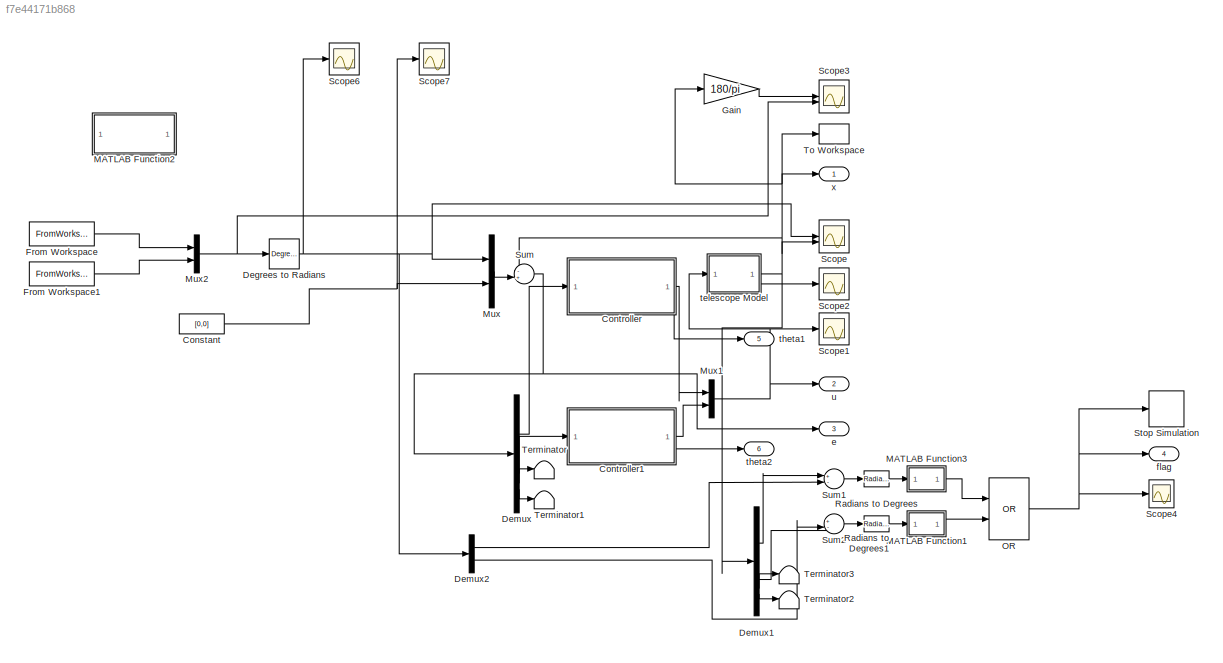
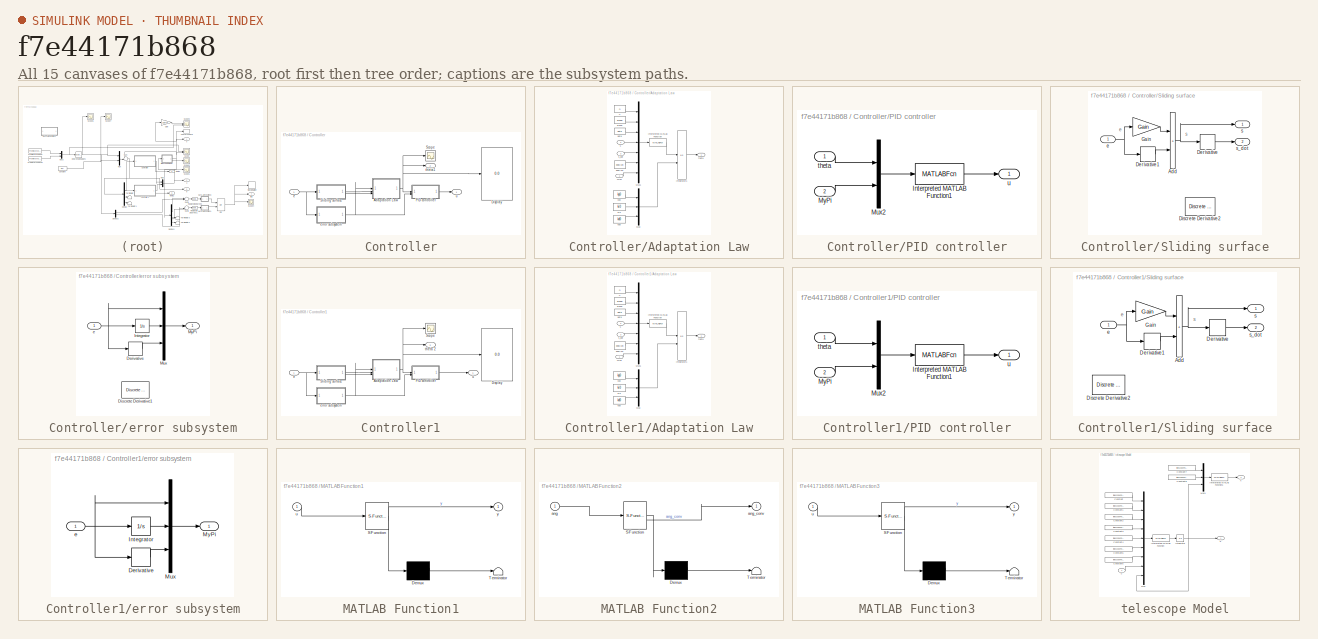
[diagram: thumbnail index - all 15 canvases of the model, root first then tree order]
MODEL slx_f7e44171b868
KIND model
CONFIG AbsTol = auto
CONFIG EnableMultiTasking = off
CONFIG FixedStep = 0.001
CONFIG MaxStep = auto
CONFIG MinStep = auto
CONFIG RelTol = 1e-3
CONFIG SampleTimeConstraint = Unconstrained
CONFIG SolverName = ode4
CONFIG StartTime = 0.0
CONFIG StopTime = 500
BLOCK [Constant] Constant
  Value = [0,0]
BLOCK [SubSystem] Controller
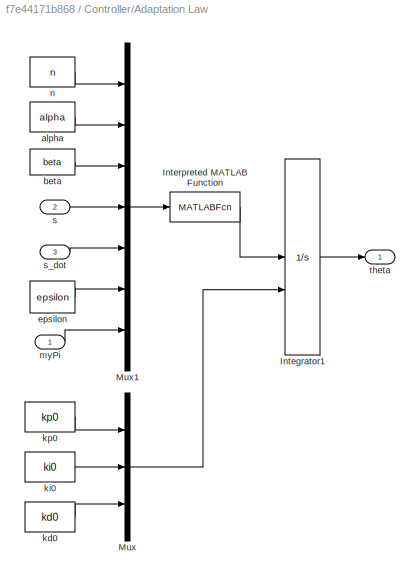
BLOCK [SubSystem] Controller/Adaptation Law
BLOCK [Integrator] Controller/Adaptation Law/Integrator1
  InitialCondition = [1.460477259865257e-04,6.548069875818259e-05,0]
  InitialConditionSource = external
BLOCK [MATLABFcn] Controller/Adaptation Law/Interpreted MATLAB Function
  MATLABFcn = adaptationLaw
BLOCK [Mux] Controller/Adaptation Law/Mux
  DisplayOption = bar
  Inputs = 3
BLOCK [Mux] Controller/Adaptation Law/Mux1
  DisplayOption = bar
  Inputs = 7
BLOCK [Constant] Controller/Adaptation Law/alpha
  Value = alpha
BLOCK [Constant] Controller/Adaptation Law/beta
  Value = beta
BLOCK [Constant] Controller/Adaptation Law/epsilon
  Value = epsilon
BLOCK [Constant] Controller/Adaptation Law/kd0
  Value = kd0
BLOCK [Constant] Controller/Adaptation Law/ki0
  Value = ki0
BLOCK [Constant] Controller/Adaptation Law/kp0
  Value = kp0
BLOCK [Inport] Controller/Adaptation Law/myPi
BLOCK [Constant] Controller/Adaptation Law/n
  Value = n
BLOCK [Inport] Controller/Adaptation Law/s
  Port = 2
BLOCK [Inport] Controller/Adaptation Law/s_dot
  Port = 3
BLOCK [Outport] Controller/Adaptation Law/theta
BLOCK [Display] Controller/Display
  Decimation = 1
BLOCK [SubSystem] Controller/PID controller
BLOCK [MATLABFcn] Controller/PID controller/Interpreted MATLAB Function1
  MATLABFcn = controlLaw
  OutputDimensions = 1
BLOCK [Mux] Controller/PID controller/Mux2
  DisplayOption = bar
  Inputs = 2
BLOCK [Inport] Controller/PID controller/MyPi
  Port = 2
BLOCK [Inport] Controller/PID controller/theta
BLOCK [Outport] Controller/PID controller/u
BLOCK [Scope] Controller/Scope
  Floating = off
  NumInputPorts = 1
  ScopeSpecificationString = Simulink.scopes.TimeScopeBlockCfg('CurrentConfiguration', extmgr.ConfigurationSet(extmgr.Configuration('Core','General UI',true),extmgr.Configuration('Core','Source UI',true),extmgr.Configuration('Sources','WiredSimulink',true,'DataLoggingVariableName','ScopeData1'),extmgr.Configuration('Visuals','Time Domain',true,'SerializedDisplays',{struct('MinYLimReal','-3.23899','MaxYLimReal','10.87891','YLa...<+1579ch>
BLOCK [SubSystem] Controller/Sliding surface
BLOCK [Sum] Controller/Sliding surface/Add
  IconShape = rectangular
BLOCK [Derivative] Controller/Sliding surface/Derivative
BLOCK [Derivative] Controller/Sliding surface/Derivative1
BLOCK [Reference] Controller/Sliding surface/Discrete Derivative2  REF=simulink/Discrete/Discrete Derivative
  Commented = on
  SourceBlock = simulink/Discrete/Discrete Derivative
  SourceType = Discrete Derivative
BLOCK [Gain] Controller/Sliding surface/Gain
  Gain = Gain
BLOCK [Inport] Controller/Sliding surface/e
BLOCK [Outport] Controller/Sliding surface/s
BLOCK [Outport] Controller/Sliding surface/s_dot
  Port = 2
BLOCK [Inport] Controller/e
BLOCK [SubSystem] Controller/error subsystem
BLOCK [Derivative] Controller/error subsystem/Derivative
BLOCK [Reference] Controller/error subsystem/Discrete Derivative1  REF=simulink/Discrete/Discrete Derivative
  Commented = on
  SourceBlock = simulink/Discrete/Discrete Derivative
  SourceType = Discrete Derivative
BLOCK [Integrator] Controller/error subsystem/Integrator
BLOCK [Mux] Controller/error subsystem/Mux
  DisplayOption = bar
  Inputs = 3
BLOCK [Outport] Controller/error subsystem/MyPi
BLOCK [Inport] Controller/error subsystem/e
BLOCK [Outport] Controller/theta1
  Port = 2
BLOCK [Outport] Controller/u
BLOCK [SubSystem] Controller1
BLOCK [SubSystem] Controller1/Adaptation Law
BLOCK [Integrator] Controller1/Adaptation Law/Integrator1
  InitialCondition = [1.460477259865257e-04,6.548069875818259e-05,0]
  InitialConditionSource = external
BLOCK [MATLABFcn] Controller1/Adaptation Law/Interpreted MATLAB Function
  MATLABFcn = adaptationLaw
BLOCK [Mux] Controller1/Adaptation Law/Mux
  DisplayOption = bar
  Inputs = 3
BLOCK [Mux] Controller1/Adaptation Law/Mux1
  DisplayOption = bar
  Inputs = 7
BLOCK [Constant] Controller1/Adaptation Law/alpha
  Value = alpha
BLOCK [Constant] Controller1/Adaptation Law/beta
  Value = beta
BLOCK [Constant] Controller1/Adaptation Law/epsilon
  Value = epsilon
BLOCK [Constant] Controller1/Adaptation Law/kd0
  Value = kd0
BLOCK [Constant] Controller1/Adaptation Law/ki0
  Value = ki0
BLOCK [Constant] Controller1/Adaptation Law/kp0
  Value = kp0
BLOCK [Inport] Controller1/Adaptation Law/myPi
BLOCK [Constant] Controller1/Adaptation Law/n
  Value = n
BLOCK [Inport] Controller1/Adaptation Law/s
  Port = 2
BLOCK [Inport] Controller1/Adaptation Law/s_dot
  Port = 3
BLOCK [Outport] Controller1/Adaptation Law/theta
BLOCK [Display] Controller1/Display
  Decimation = 1
BLOCK [SubSystem] Controller1/PID controller
BLOCK [MATLABFcn] Controller1/PID controller/Interpreted MATLAB Function1
  MATLABFcn = controlLaw
  OutputDimensions = 1
BLOCK [Mux] Controller1/PID controller/Mux2
  DisplayOption = bar
  Inputs = 2
BLOCK [Inport] Controller1/PID controller/MyPi
  Port = 2
BLOCK [Inport] Controller1/PID controller/theta
BLOCK [Outport] Controller1/PID controller/u
BLOCK [Scope] Controller1/Scope
  Floating = off
  NumInputPorts = 1
  ScopeSpecificationString = Simulink.scopes.TimeScopeBlockCfg('CurrentConfiguration', extmgr.ConfigurationSet(extmgr.Configuration('Core','General UI',true),extmgr.Configuration('Core','Source UI',true),extmgr.Configuration('Sources','WiredSimulink',true,'DataLoggingVariableName','ScopeData1'),extmgr.Configuration('Visuals','Time Domain',true,'SerializedDisplays',{struct('MinYLimReal','-15.61966','MaxYLimReal','107.84317','Y...<+1585ch>
BLOCK [SubSystem] Controller1/Sliding surface
BLOCK [Sum] Controller1/Sliding surface/Add
  IconShape = rectangular
BLOCK [Derivative] Controller1/Sliding surface/Derivative
BLOCK [Derivative] Controller1/Sliding surface/Derivative1
BLOCK [Reference] Controller1/Sliding surface/Discrete Derivative2  REF=simulink/Discrete/Discrete Derivative
  Commented = on
  SourceBlock = simulink/Discrete/Discrete Derivative
  SourceType = Discrete Derivative
BLOCK [Gain] Controller1/Sliding surface/Gain
  Gain = Gain
BLOCK [Inport] Controller1/Sliding surface/e
BLOCK [Outport] Controller1/Sliding surface/s
BLOCK [Outport] Controller1/Sliding surface/s_dot
  Port = 2
BLOCK [Inport] Controller1/e
BLOCK [SubSystem] Controller1/error subsystem
BLOCK [Derivative] Controller1/error subsystem/Derivative
BLOCK [Integrator] Controller1/error subsystem/Integrator
BLOCK [Mux] Controller1/error subsystem/Mux
  DisplayOption = bar
  Inputs = 3
BLOCK [Outport] Controller1/error subsystem/MyPi
BLOCK [Inport] Controller1/error subsystem/e
BLOCK [Outport] Controller1/theta 2
  Port = 2
BLOCK [Outport] Controller1/u
BLOCK [Reference] Degrees to Radians  REF=simulink_extras/Transformations/Degrees to
Radians
  SourceBlock = simulink_extras/Transformations/Degrees to\nRadians
  SourceType = DegreesToRadians
BLOCK [Demux] Demux
BLOCK [Demux] Demux1
BLOCK [Demux] Demux2
  Outputs = 2
BLOCK [FromWorkspace] From Workspace
  VariableName = signalAz
BLOCK [FromWorkspace] From Workspace1
  VariableName = signalEl
BLOCK [Gain] Gain
  Gain = 180/pi
BLOCK [SubSystem] MATLAB Function1
  ErrorFcn = Stateflow.Translate.translate
  PermitHierarchicalResolution = ExplicitOnly
  SFBlockType = MATLAB Function
  TreatAsAtomicUnit = on
BLOCK [Demux] MATLAB Function1/ Demux 
  Outputs = 1
BLOCK [S-Function] MATLAB Function1/ SFunction 
  EnableBusSupport = on
  FunctionName = sf_sfun
  PortCounts = [1 2]
  SFcnIsStateOwnerBlock = off
  SFunctionDeploymentMode = off
  Tag = Stateflow S-Function 1
BLOCK [Terminator] MATLAB Function1/ Terminator 
BLOCK [Inport] MATLAB Function1/u
BLOCK [Outport] MATLAB Function1/y
BLOCK [SubSystem] MATLAB Function2
  Commented = on
  ErrorFcn = Stateflow.Translate.translate
  PermitHierarchicalResolution = ExplicitOnly
  SFBlockType = MATLAB Function
  TreatAsAtomicUnit = on
BLOCK [Demux] MATLAB Function2/ Demux 
  Outputs = 1
BLOCK [S-Function] MATLAB Function2/ SFunction 
  EnableBusSupport = on
  FunctionName = sf_sfun
  PortCounts = [1 2]
  SFcnIsStateOwnerBlock = off
  SFunctionDeploymentMode = off
  Tag = Stateflow S-Function 4
BLOCK [Terminator] MATLAB Function2/ Terminator 
BLOCK [Inport] MATLAB Function2/ang
BLOCK [Outport] MATLAB Function2/ang_conv
BLOCK [SubSystem] MATLAB Function3
  ErrorFcn = Stateflow.Translate.translate
  PermitHierarchicalResolution = ExplicitOnly
  SFBlockType = MATLAB Function
  TreatAsAtomicUnit = on
BLOCK [Demux] MATLAB Function3/ Demux 
  Outputs = 1
BLOCK [S-Function] MATLAB Function3/ SFunction 
  EnableBusSupport = on
  FunctionName = sf_sfun
  PortCounts = [1 2]
  SFcnIsStateOwnerBlock = off
  SFunctionDeploymentMode = off
  Tag = Stateflow S-Function 2
BLOCK [Terminator] MATLAB Function3/ Terminator 
BLOCK [Inport] MATLAB Function3/u
BLOCK [Outport] MATLAB Function3/y
BLOCK [Mux] Mux
  DisplayOption = bar
  Inputs = 2
BLOCK [Mux] Mux1
  DisplayOption = bar
  Inputs = 2
BLOCK [Mux] Mux2
  DisplayOption = bar
  Inputs = 2
BLOCK [Logic] OR
  AllPortsSameDT = off
  IconShape = distinctive
  Operator = OR
  OutDataTypeStr = boolean
BLOCK [Reference] Radians to Degrees  REF=simulink_extras/Transformations/Radians
to Degrees
  SourceBlock = simulink_extras/Transformations/Radians\nto Degrees
  SourceType = RadiansToDegrees
BLOCK [Reference] Radians to Degrees1  REF=simulink_extras/Transformations/Radians
to Degrees
  SourceBlock = simulink_extras/Transformations/Radians\nto Degrees
  SourceType = RadiansToDegrees
BLOCK [Scope] Scope
  Floating = off
  NumInputPorts = 2
  ScopeSpecificationString = Simulink.scopes.TimeScopeBlockCfg('CurrentConfiguration', extmgr.ConfigurationSet(extmgr.Configuration('Core','General UI',true),extmgr.Configuration('Core','Source UI',true),extmgr.Configuration('Sources','WiredSimulink',true,'DataLoggingVariableName','ScopeData1'),extmgr.Configuration('Visuals','Time Domain',true,'SerializedDisplays',{struct('MinYLimReal','-0.75887','MaxYLimReal','5.79344','YLab...<+1816ch>
BLOCK [Scope] Scope1
  Floating = off
  NumInputPorts = 1
  ScopeSpecificationString = Simulink.scopes.TimeScopeBlockCfg('CurrentConfiguration', extmgr.ConfigurationSet(extmgr.Configuration('Core','General UI',true),extmgr.Configuration('Core','Source UI',true),extmgr.Configuration('Sources','WiredSimulink',true,'DataLoggingVariableName','ScopeData2'),extmgr.Configuration('Visuals','Time Domain',true,'SerializedDisplays',{struct('MinYLimReal','-30057073636914040832.00000','MaxYLimRe...<+1861ch>
BLOCK [Scope] Scope2
  Floating = off
  NumInputPorts = 1
  ScopeSpecificationString = Simulink.scopes.TimeScopeBlockCfg('CurrentConfiguration', extmgr.ConfigurationSet(extmgr.Configuration('Core','General UI',true),extmgr.Configuration('Core','Source UI',true),extmgr.Configuration('Sources','WiredSimulink',true,'DataLoggingVariableName','ScopeData3'),extmgr.Configuration('Visuals','Time Domain',true,'SerializedDisplays',{struct('MinYLimReal','-1.25','MaxYLimReal','1.25','YLabelReal...<+1566ch>
BLOCK [Scope] Scope3
  Floating = off
  NumInputPorts = 2
  ScopeSpecificationString = Simulink.scopes.TimeScopeBlockCfg('CurrentConfiguration', extmgr.ConfigurationSet(extmgr.Configuration('Core','General UI',true),extmgr.Configuration('Core','Source UI',true),extmgr.Configuration('Sources','WiredSimulink',true,'DataLoggingVariableName','ScopeData4'),extmgr.Configuration('Visuals','Time Domain',true,'SerializedDisplays',{struct('MinYLimReal','17.00185','MaxYLimReal','267.28158','YL...<+1736ch>
BLOCK [Scope] Scope4
  Floating = off
  NumInputPorts = 1
  ScopeSpecificationString = Simulink.scopes.TimeScopeBlockCfg('CurrentConfiguration', extmgr.ConfigurationSet(extmgr.Configuration('Core','General UI',true),extmgr.Configuration('Core','Source UI',true),extmgr.Configuration('Sources','WiredSimulink',true,'DataLoggingVariableName','ScopeData5'),extmgr.Configuration('Visuals','Time Domain',true,'SerializedDisplays',{struct('MinYLimReal','-1.00000','MaxYLimReal','1.00000','YLab...<+1523ch>
BLOCK [Scope] Scope6
  Floating = off
  NumInputPorts = 1
  ScopeSpecificationString = Simulink.scopes.TimeScopeBlockCfg('CurrentConfiguration', extmgr.ConfigurationSet(extmgr.Configuration('Core','General UI',true),extmgr.Configuration('Core','Source UI',true),extmgr.Configuration('Sources','WiredSimulink',true,'DataLoggingVariableName','ScopeData1'),extmgr.Configuration('Visuals','Time Domain',true,'SerializedDisplays',{struct('MinYLimReal','-0.19767','MaxYLimReal','5.73108','YLab...<+1564ch>
BLOCK [Scope] Scope7
  Floating = off
  NumInputPorts = 1
  ScopeSpecificationString = Simulink.scopes.TimeScopeBlockCfg('CurrentConfiguration', extmgr.ConfigurationSet(extmgr.Configuration('Core','General UI',true),extmgr.Configuration('Core','Source UI',true),extmgr.Configuration('Sources','WiredSimulink',true,'DataLoggingVariableName','ScopeData2'),extmgr.Configuration('Visuals','Time Domain',true,'SerializedDisplays',{struct('MinYLimReal','-0.01864','MaxYLimReal','0.00572','YLab...<+1615ch>
BLOCK [Stop] Stop Simulation
  Commented = on
BLOCK [Sum] Sum
  Inputs = -+|
BLOCK [Sum] Sum1
  Inputs = +-|
BLOCK [Sum] Sum2
  Inputs = +-|
BLOCK [Terminator] Terminator
BLOCK [Terminator] Terminator1
BLOCK [Terminator] Terminator2
BLOCK [Terminator] Terminator3
BLOCK [ToWorkspace] To Workspace
  FixptAsFi = on
  MaxDataPoints = inf
  SampleTime = -1
  VariableName = q
BLOCK [Outport] e
  Port = 3
BLOCK [Outport] flag
  Port = 4
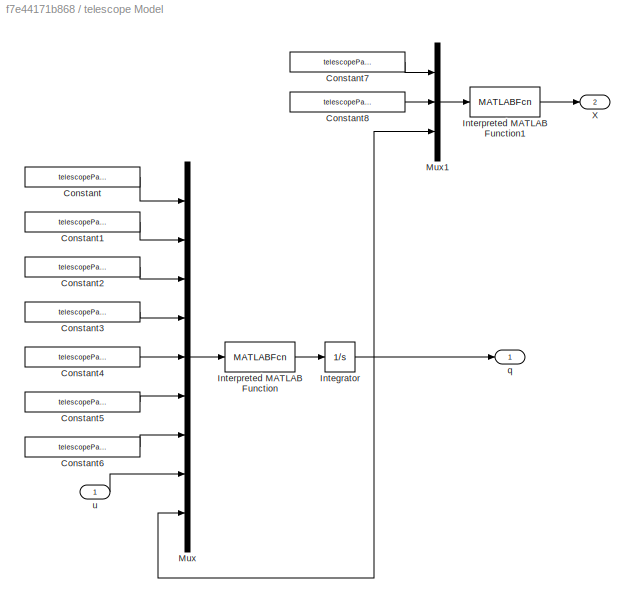
BLOCK [SubSystem] telescope Model
BLOCK [Constant] telescope Model/Constant
  Value = telescopeParam.I_1
BLOCK [Constant] telescope Model/Constant1
  Value = telescopeParam.l1
BLOCK [Constant] telescope Model/Constant2
  Value = telescopeParam.m1
BLOCK [Constant] telescope Model/Constant3
  Value = telescopeParam.I_2
BLOCK [Constant] telescope Model/Constant4
  Value = telescopeParam.l2
BLOCK [Constant] telescope Model/Constant5
  Value = telescopeParam.m2
BLOCK [Constant] telescope Model/Constant6
  Value = telescopeParam.cg2
BLOCK [Constant] telescope Model/Constant7
  Value = telescopeParam.l1
BLOCK [Constant] telescope Model/Constant8
  Value = telescopeParam.l2
BLOCK [Integrator] telescope Model/Integrator
  InitialCondition = [0,0,0,0]'
BLOCK [MATLABFcn] telescope Model/Interpreted MATLAB Function
  MATLABFcn = telescopeModel
BLOCK [MATLABFcn] telescope Model/Interpreted MATLAB Function1
  MATLABFcn = directKinematics
BLOCK [Mux] telescope Model/Mux
  DisplayOption = bar
  Inputs = 9
BLOCK [Mux] telescope Model/Mux1
  DisplayOption = bar
  Inputs = 3
BLOCK [Outport] telescope Model/X
  Port = 2
BLOCK [Outport] telescope Model/q
BLOCK [Inport] telescope Model/u
BLOCK [Outport] theta1
  Port = 5
BLOCK [Outport] theta2
  Port = 6
BLOCK [Outport] u
  Port = 2
BLOCK [Outport] x
ANNOTATION Controller/Sliding surface: e
ANNOTATION Controller/Sliding surface: s
ANNOTATION Controller1/Sliding surface: e
ANNOTATION Controller1/Sliding surface: s
NET Constant:1 -> Mux:2, Scope7:1
LINE Controller/Adaptation Law/Integrator1:1 -> Controller/Adaptation Law/theta:1
LINE Controller/Adaptation Law/Interpreted MATLAB Function:1 -> Controller/Adaptation Law/Integrator1:1
LINE Controller/Adaptation Law/Mux1:1 -> Controller/Adaptation Law/Interpreted MATLAB Function:1
LINE Controller/Adaptation Law/Mux:1 -> Controller/Adaptation Law/Integrator1:2
LINE Controller/Adaptation Law/alpha:1 -> Controller/Adaptation Law/Mux1:2
LINE Controller/Adaptation Law/beta:1 -> Controller/Adaptation Law/Mux1:3
LINE Controller/Adaptation Law/epsilon:1 -> Controller/Adaptation Law/Mux1:6
LINE Controller/Adaptation Law/kd0:1 -> Controller/Adaptation Law/Mux:3
LINE Controller/Adaptation Law/ki0:1 -> Controller/Adaptation Law/Mux:2
LINE Controller/Adaptation Law/kp0:1 -> Controller/Adaptation Law/Mux:1
LINE Controller/Adaptation Law/myPi:1 -> Controller/Adaptation Law/Mux1:7
LINE Controller/Adaptation Law/n:1 -> Controller/Adaptation Law/Mux1:1
LINE Controller/Adaptation Law/s:1 -> Controller/Adaptation Law/Mux1:4
LINE Controller/Adaptation Law/s_dot:1 -> Controller/Adaptation Law/Mux1:5
NET Controller/Adaptation Law:1 -> Controller/Display:1, Controller/PID controller:1, Controller/Scope:1, Controller/theta1:1
LINE Controller/PID controller/Interpreted MATLAB Function1:1 -> Controller/PID controller/u:1
LINE Controller/PID controller/Mux2:1 -> Controller/PID controller/Interpreted MATLAB Function1:1
LINE Controller/PID controller/MyPi:1 -> Controller/PID controller/Mux2:2
LINE Controller/PID controller/theta:1 -> Controller/PID controller/Mux2:1
LINE Controller/PID controller:1 -> Controller/u:1
NET Controller/Sliding surface/Add:1 -> Controller/Sliding surface/Derivative:1, Controller/Sliding surface/s:1
LINE Controller/Sliding surface/Derivative1:1 -> Controller/Sliding surface/Add:2
LINE Controller/Sliding surface/Derivative:1 -> Controller/Sliding surface/s_dot:1
LINE Controller/Sliding surface/Gain:1 -> Controller/Sliding surface/Add:1
NET Controller/Sliding surface/e:1 -> Controller/Sliding surface/Derivative1:1, Controller/Sliding surface/Gain:1
LINE Controller/Sliding surface:1 -> Controller/Adaptation Law:2
LINE Controller/Sliding surface:2 -> Controller/Adaptation Law:3
NET Controller/e:1 -> Controller/Sliding surface:1, Controller/error subsystem:1
LINE Controller/error subsystem/Derivative:1 -> Controller/error subsystem/Mux:3
LINE Controller/error subsystem/Integrator:1 -> Controller/error subsystem/Mux:2
LINE Controller/error subsystem/Mux:1 -> Controller/error subsystem/MyPi:1
NET Controller/error subsystem/e:1 -> Controller/error subsystem/Derivative:1, Controller/error subsystem/Integrator:1, Controller/error subsystem/Mux:1
NET Controller/error subsystem:1 -> Controller/Adaptation Law:1, Controller/PID controller:2
LINE Controller1/Adaptation Law/Integrator1:1 -> Controller1/Adaptation Law/theta:1
LINE Controller1/Adaptation Law/Interpreted MATLAB Function:1 -> Controller1/Adaptation Law/Integrator1:1
LINE Controller1/Adaptation Law/Mux1:1 -> Controller1/Adaptation Law/Interpreted MATLAB Function:1
LINE Controller1/Adaptation Law/Mux:1 -> Controller1/Adaptation Law/Integrator1:2
LINE Controller1/Adaptation Law/alpha:1 -> Controller1/Adaptation Law/Mux1:2
LINE Controller1/Adaptation Law/beta:1 -> Controller1/Adaptation Law/Mux1:3
LINE Controller1/Adaptation Law/epsilon:1 -> Controller1/Adaptation Law/Mux1:6
LINE Controller1/Adaptation Law/kd0:1 -> Controller1/Adaptation Law/Mux:3
LINE Controller1/Adaptation Law/ki0:1 -> Controller1/Adaptation Law/Mux:2
LINE Controller1/Adaptation Law/kp0:1 -> Controller1/Adaptation Law/Mux:1
LINE Controller1/Adaptation Law/myPi:1 -> Controller1/Adaptation Law/Mux1:7
LINE Controller1/Adaptation Law/n:1 -> Controller1/Adaptation Law/Mux1:1
LINE Controller1/Adaptation Law/s:1 -> Controller1/Adaptation Law/Mux1:4
LINE Controller1/Adaptation Law/s_dot:1 -> Controller1/Adaptation Law/Mux1:5
NET Controller1/Adaptation Law:1 -> Controller1/Display:1, Controller1/PID controller:1, Controller1/Scope:1, Controller1/theta 2:1
LINE Controller1/PID controller/Interpreted MATLAB Function1:1 -> Controller1/PID controller/u:1
LINE Controller1/PID controller/Mux2:1 -> Controller1/PID controller/Interpreted MATLAB Function1:1
LINE Controller1/PID controller/MyPi:1 -> Controller1/PID controller/Mux2:2
LINE Controller1/PID controller/theta:1 -> Controller1/PID controller/Mux2:1
LINE Controller1/PID controller:1 -> Controller1/u:1
NET Controller1/Sliding surface/Add:1 -> Controller1/Sliding surface/Derivative:1, Controller1/Sliding surface/s:1
LINE Controller1/Sliding surface/Derivative1:1 -> Controller1/Sliding surface/Add:2
LINE Controller1/Sliding surface/Derivative:1 -> Controller1/Sliding surface/s_dot:1
LINE Controller1/Sliding surface/Gain:1 -> Controller1/Sliding surface/Add:1
NET Controller1/Sliding surface/e:1 -> Controller1/Sliding surface/Derivative1:1, Controller1/Sliding surface/Gain:1
LINE Controller1/Sliding surface:1 -> Controller1/Adaptation Law:2
LINE Controller1/Sliding surface:2 -> Controller1/Adaptation Law:3
NET Controller1/e:1 -> Controller1/Sliding surface:1, Controller1/error subsystem:1
LINE Controller1/error subsystem/Derivative:1 -> Controller1/error subsystem/Mux:3
LINE Controller1/error subsystem/Integrator:1 -> Controller1/error subsystem/Mux:2
LINE Controller1/error subsystem/Mux:1 -> Controller1/error subsystem/MyPi:1
NET Controller1/error subsystem/e:1 -> Controller1/error subsystem/Derivative:1, Controller1/error subsystem/Integrator:1, Controller1/error subsystem/Mux:1
NET Controller1/error subsystem:1 -> Controller1/Adaptation Law:1, Controller1/PID controller:2
LINE Controller1:1 -> Mux1:2
LINE Controller1:2 -> theta2:1
LINE Controller:1 -> Mux1:1
LINE Controller:2 -> theta1:1
NET Degrees to Radians:1 -> Demux2:1, Mux:1, Scope6:1, Scope:1
LINE Demux1:1 -> Sum1:1
LINE Demux1:2 -> Sum2:1
LINE Demux1:3 -> Terminator3:1
LINE Demux1:4 -> Terminator2:1
LINE Demux2:1 -> Sum1:2
LINE Demux2:2 -> Sum2:2
LINE Demux:1 -> Controller:1
LINE Demux:2 -> Controller1:1
LINE Demux:3 -> Terminator:1
LINE Demux:4 -> Terminator1:1
LINE From Workspace1:1 -> Mux2:2
LINE From Workspace:1 -> Mux2:1
LINE Gain:1 -> Scope3:1
LINE MATLAB Function1:1 -> OR:2
LINE MATLAB Function3:1 -> OR:1
NET Mux1:1 -> Scope1:1, telescope Model:1, u:1
NET Mux2:1 -> Degrees to Radians:1, Scope3:2
LINE Mux:1 -> Sum:2
NET OR:1 -> Scope4:1, Stop Simulation:1, flag:1
LINE Radians to Degrees1:1 -> MATLAB Function1:1
LINE Radians to Degrees:1 -> MATLAB Function3:1
LINE Sum1:1 -> Radians to Degrees:1
LINE Sum2:1 -> Radians to Degrees1:1
NET Sum:1 -> Demux:1, e:1
LINE telescope Model/Constant1:1 -> telescope Model/Mux:2
LINE telescope Model/Constant2:1 -> telescope Model/Mux:3
LINE telescope Model/Constant3:1 -> telescope Model/Mux:4
LINE telescope Model/Constant4:1 -> telescope Model/Mux:5
LINE telescope Model/Constant5:1 -> telescope Model/Mux:6
LINE telescope Model/Constant6:1 -> telescope Model/Mux:7
LINE telescope Model/Constant7:1 -> telescope Model/Mux1:1
LINE telescope Model/Constant8:1 -> telescope Model/Mux1:2
LINE telescope Model/Constant:1 -> telescope Model/Mux:1
NET telescope Model/Integrator:1 -> telescope Model/Mux1:3, telescope Model/Mux:9, telescope Model/q:1
LINE telescope Model/Interpreted MATLAB Function1:1 -> telescope Model/X:1
LINE telescope Model/Interpreted MATLAB Function:1 -> telescope Model/Integrator:1
LINE telescope Model/Mux1:1 -> telescope Model/Interpreted MATLAB Function1:1
LINE telescope Model/Mux:1 -> telescope Model/Interpreted MATLAB Function:1
LINE telescope Model/u:1 -> telescope Model/Mux:8
NET telescope Model:1 -> Demux1:1, Gain:1, Scope:2, Sum:1, To Workspace:1, x:1
LINE telescope Model:2 -> Scope2:1
note: NET lines group one-source signal fan-out (src -> all destinations, sorted); 1:1 wires keep LINE
CHART MATLAB Function3 states=1 transitions=1
  STATE_LABEL 'eML_blk_kernel()'
  STATE_LABEL 'SCRIPT:\nfunction y = fcn(u)\n    if (u) >  2.437\n        y = 1;\n    else\n        y = 0;\n    end\nend\n'
CHART MATLAB Function2 states=1 transitions=1
  STATE_LABEL 'eML_blk_kernel()'
  STATE_LABEL 'SCRIPT:\nfunction ang_conv = conv_ang(ang)\n    % Convertir un ángulo de 0 a 360 grados al rango de -180 a 180 grados\n    ang_conv = mod(ang + 180, 360) - 180;\nend\n'
CHART MATLAB Function1 states=1 transitions=1
  STATE_LABEL 'eML_blk_kernel()'
  STATE_LABEL 'SCRIPT:\nfunction y = fcn(u)\n    if (u) >  2.437\n        y = 1;\n    else\n        y = 0;\n    end\nend\n'
CHART  states=0 transitions=0
CHART  states=0 transitions=0
CHART  states=0 transitions=0
